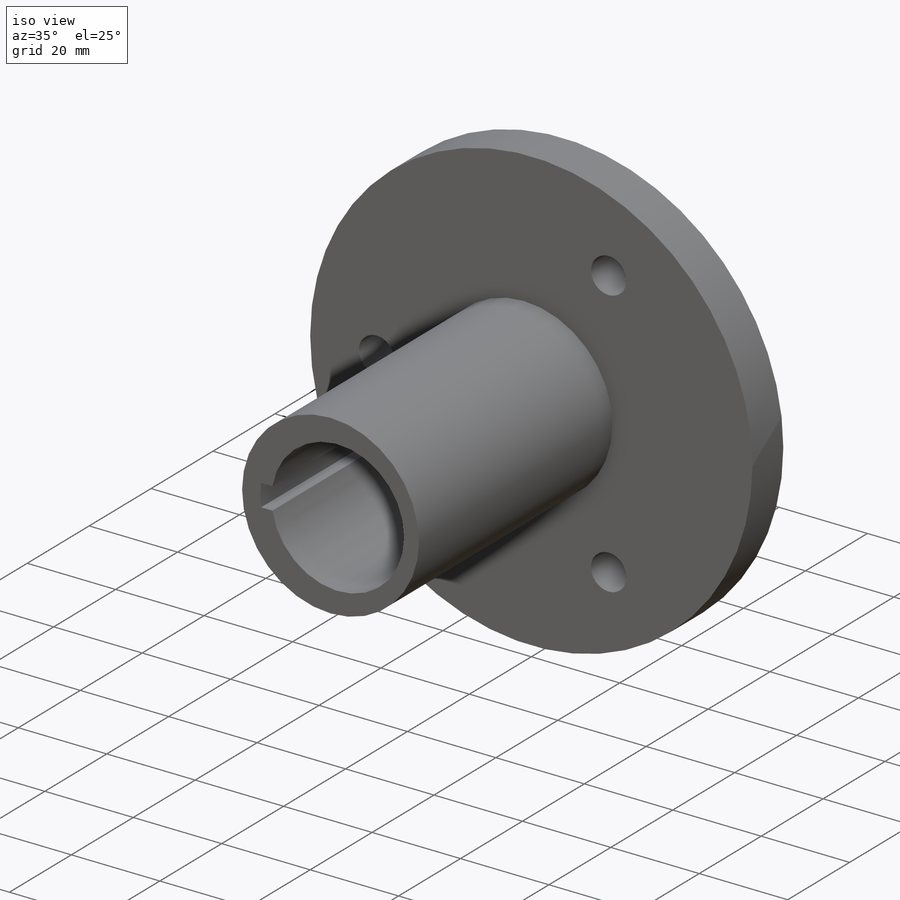
[diagram: iso view]
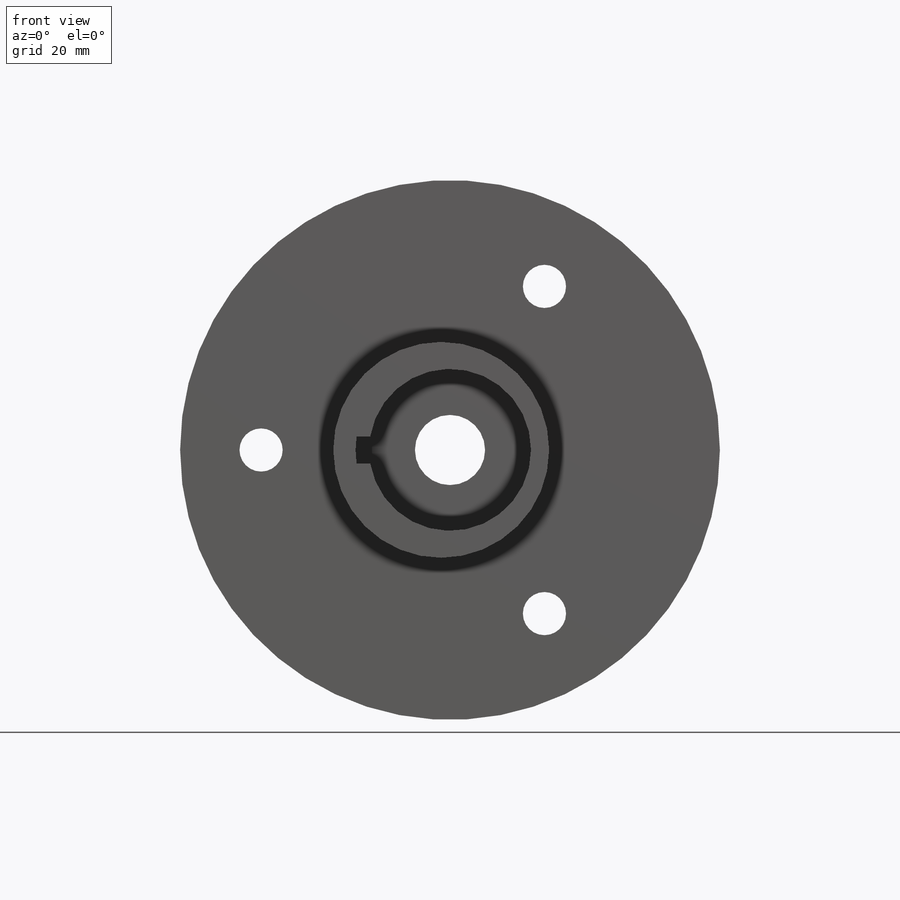
[diagram: front view]
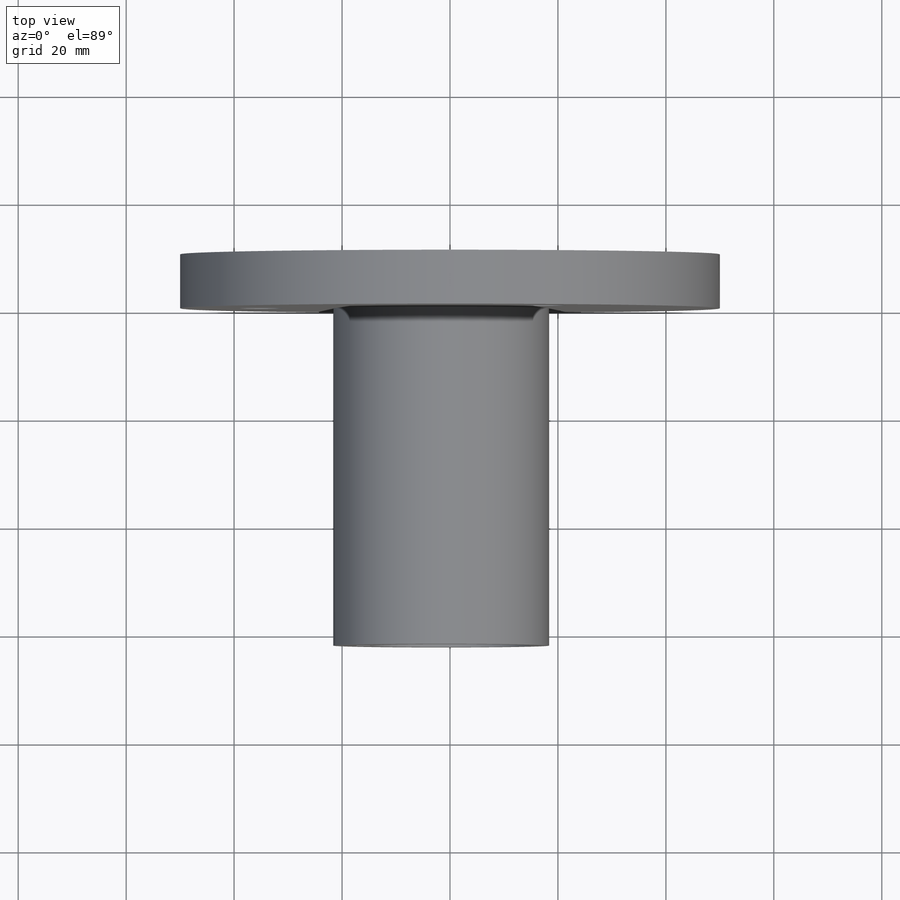
[diagram: top view]
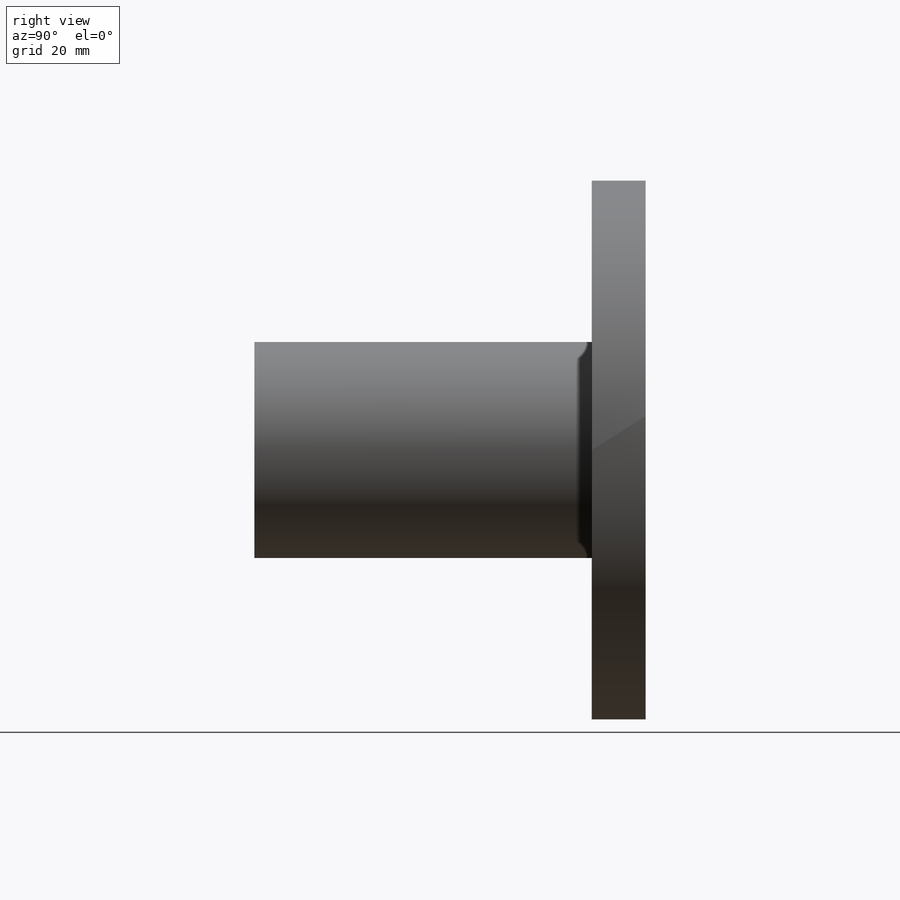
[diagram: right view]
SOLIDWORKS PART (.sldprt)
format: sldprt  version: not decoded by parser v0  size: 183,808 bytes
history: native  units: mm
features: sketch x6, extrude x2, cut_extrude x2, material x1 (+13 scaffold rows collapsed)
feature tree (24):
  scaffold x13  (default folders/planes/origin — collapsed)
  material  "Material <not specified>"
  sketch  "Sketch1"  dims[c1.D1=100.0mm c1.D2=30.0mm c1.D4=32.0mm c1.D5=32.0mm c2.D4=8.0mm c2.D5=~86.479633mm c3.D4=~58.29908mm c3.D3=2.5mm c4.D4=2.5mm c4.D5=2.5mm c5.D4=3.0]
  extrude  "Boss-Extrude1"  Depth=10mm
  cut_extrude  "Cut-Extrude1"  [1 undecoded]
  sketch  "Sketch1<3>"  dims[D1=10.0mm]
  extrude  "Boss-Extrude2"  [1 undecoded]
  sketch  "Sketch1<4>"  dims[D1=62.5mm]
  sketch  "Sketch3"  dims[D1=13.0mm]
  sketch  "Sketch4"  dims[D1=30.0mm]
  cut_extrude  "Cut-Extrude3"  Depth=50mm
  sketch  "Sketch5"  dims[D1=50.0mm]
decode coverage: 8 of 10 modeling features carry decoded parameters
note: ~ marks probable driven/reference dimensions
note: 2 parameter values undecoded
note: suppression state not decoded; provenance and decode notes live in map.json
